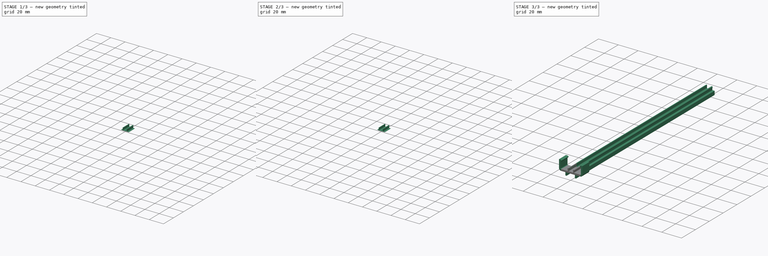
[diagram: build sequence overview — one tinted view per stage of 3, left to right]
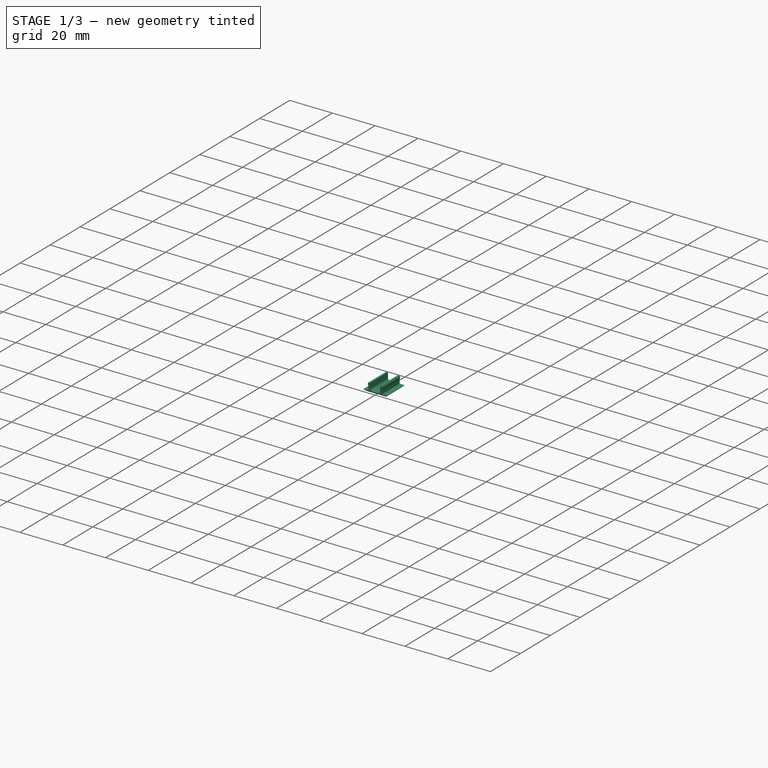
[diagram: stage 1 of 3 — iso view after this stage's code; geometry added in this stage tinted green]
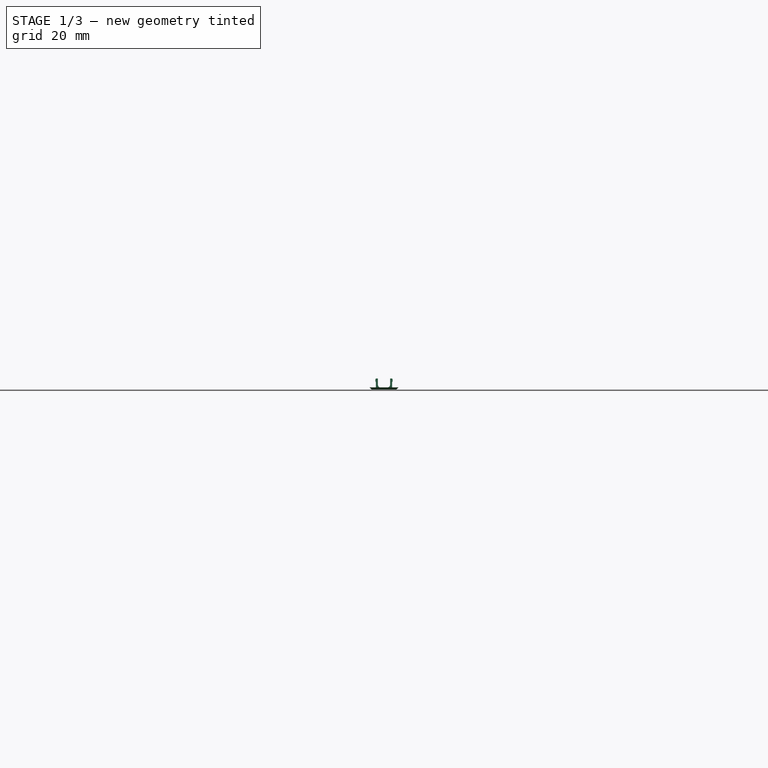
[diagram: stage 1 of 3 — front view after this stage's code; geometry added in this stage tinted green]
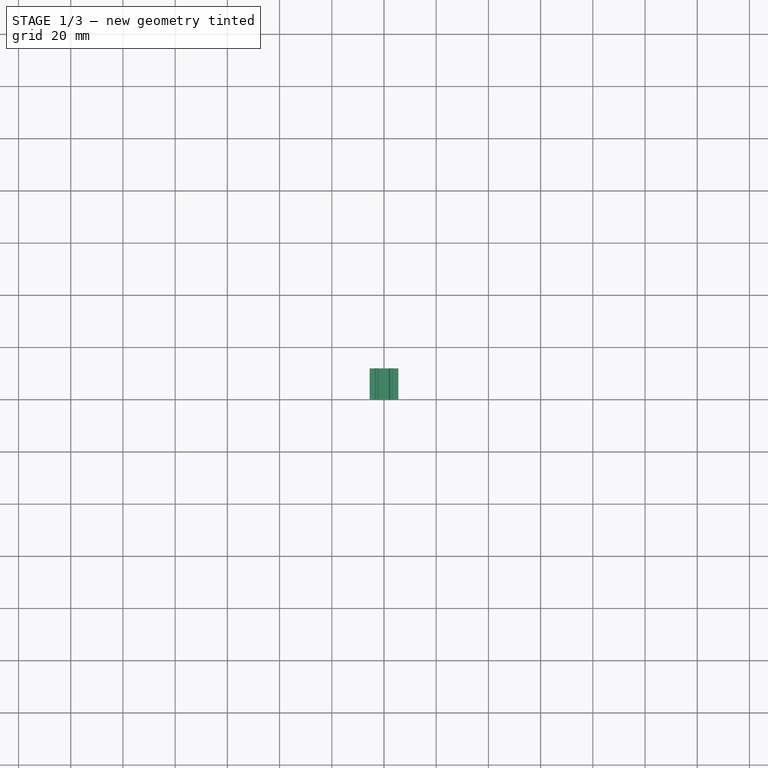
[diagram: stage 1 of 3 — top view after this stage's code; geometry added in this stage tinted green]
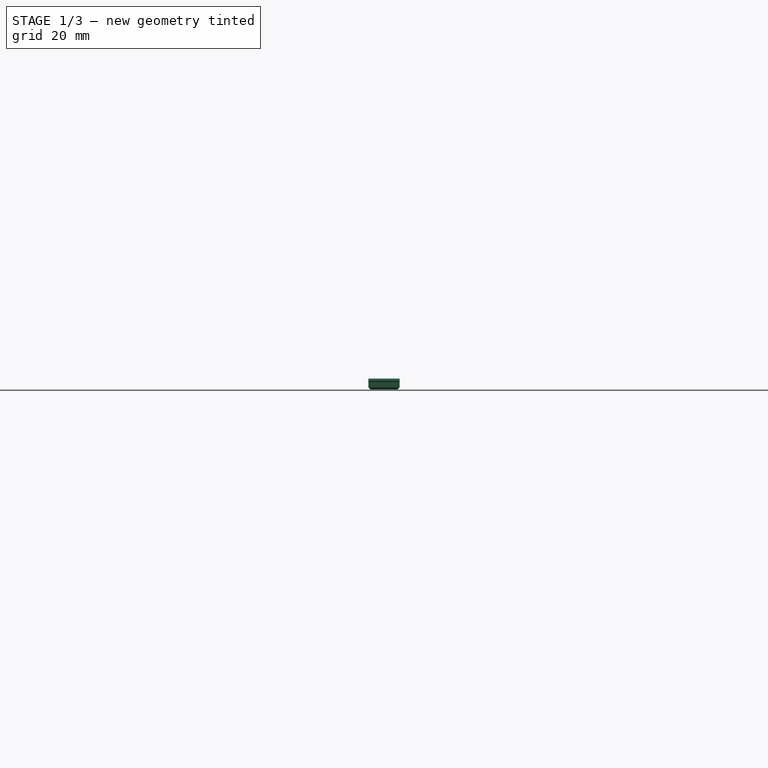
[diagram: stage 1 of 3 — right view after this stage's code; geometry added in this stage tinted green]
FCSTD DOCUMENT  (FreeCAD 0.19R24366 (Git))
Label: 2020_CableClip
License: All rights reserved
LicenseURL: http://en.wikipedia.org/wiki/All_rights_reserved
objects: Sketcher::SketchObject×3, PartDesign::Pad×3, PartDesign::Body×3, PartDesign::Chamfer×1, PartDesign::Fillet×1
note: 16 computed .brp shape members not serialized (recipe doc carries the construction recipe); baked Part::Feature solids carry a one-line shape summary decoded from their .brp

FEATURE [PartDesign::Body] Pad001Body  label="LedClipBody"
  Group = -> [Sketch001,Pad001]
  Origin = -> Origin002
  Tip = -> Pad001
FEATURE [PartDesign::Body] Pad002Body
  Group = -> [Sketch002,Pad002]
  Origin = -> Origin003
  Tip = -> Pad002
FEATURE [Sketcher::SketchObject] Sketch003  label="CableClip"
  FullyConstrained = true
  MapMode = 5
  Placement = pos=(0,0,0) rot=(0,0.707107,0.707107;3.14159rad)
  Support = -> [XZ_Plane001]
  sketch-geometry (20):
    g0: LineSegment StartX=-4.7 StartY=0 StartZ=0 EndX=4.7 EndY=0 EndZ=0
    g1: LineSegment StartX=4.7 StartY=0 StartZ=0 EndX=5.5 EndY=0.8 EndZ=0
    g2: LineSegment StartX=5.5 StartY=0.8 StartZ=0 EndX=3.125 EndY=0.8 EndZ=0
    g3: LineSegment StartX=3.125 StartY=0.8 StartZ=0 EndX=3.125 EndY=2.8 EndZ=0
    g4: LineSegment StartX=3.125 StartY=2.8 StartZ=0 EndX=3.325 EndY=3.2 EndZ=0
    g5: LineSegment StartX=3.325 StartY=3.2 StartZ=0 EndX=3.325 EndY=3.8 EndZ=0
    g6: LineSegment StartX=3.325 StartY=3.8 StartZ=0 EndX=3.125 EndY=4.2 EndZ=0
    g7: LineSegment StartX=3.125 StartY=4.2 StartZ=0 EndX=2.325 EndY=4.2 EndZ=0
    g8: LineSegment StartX=2.325 StartY=4.2 StartZ=0 EndX=2.325 EndY=1.8 EndZ=0
    g9: LineSegment StartX=1.325 StartY=0.8 StartZ=0 EndX=-1.325 EndY=0.8 EndZ=0
    g10: LineSegment StartX=-2.325 StartY=1.8 StartZ=0 EndX=-2.325 EndY=4.2 EndZ=0
    g11: LineSegment StartX=-2.325 StartY=4.2 StartZ=0 EndX=-3.125 EndY=4.2 EndZ=0
    g12: LineSegment StartX=-3.125 StartY=4.2 StartZ=0 EndX=-3.325 EndY=3.8 EndZ=0
    g13: LineSegment StartX=-3.325 StartY=3.8 StartZ=0 EndX=-3.325 EndY=3.2 EndZ=0
    g14: LineSegment StartX=-3.125 StartY=2.8 StartZ=0 EndX=-3.125 EndY=0.8 EndZ=0
    g15: LineSegment StartX=-3.125 StartY=0.8 StartZ=0 EndX=-5.5 EndY=0.8 EndZ=0
    g16: LineSegment StartX=-5.5 StartY=0.8 StartZ=0 EndX=-4.7 EndY=0 EndZ=0
    g17: ArcOfCircle CenterX=-1.325 CenterY=1.8 CenterZ=0 NormalX=0 NormalY=0 NormalZ=1 AngleXU=0 Radius=1 StartAngle=3.14159 EndAngle=4.71239
    g18: ArcOfCircle CenterX=1.325 CenterY=1.8 CenterZ=0 NormalX=0 NormalY=0 NormalZ=1 AngleXU=0 Radius=1 StartAngle=4.71239 EndAngle=6.28319
    g19: LineSegment StartX=-3.325 StartY=3.2 StartZ=0 EndX=-3.125 EndY=2.8 EndZ=0
  constraints (53):
    c: Coincident(g0,g1)
    c: Coincident(g1,g2)
    c: Horizontal(g2)
    c: Coincident(g2,g3)
    c: Vertical(g3)
    c: Coincident(g3,g4)
    c: Coincident(g4,g5)
    c: Vertical(g5)
    c: Coincident(g5,g6)
    c: Coincident(g6,g7)
    c: Horizontal(g7)
    c: Coincident(g7,g8)
    c: Vertical(g8)
    c: Horizontal(g9)
    c: Vertical(g10)
    c: Horizontal(g11)
    c: Coincident(g11,g12)
    c: Coincident(g12,g13)
    c: Vertical(g13)
    c: Vertical(g14)
    c: Coincident(g14,g15)
    c: Coincident(g15,g16)
    c: Coincident(g0,g16)
    c: DistanceY(g16,g16) = 0.8
    c: DistanceX(g11,g11) = 0.8
    c: DistanceX(g11,g6) = 6.25
    c: DistanceX(g12,g12) = 0.2
    c: DistanceY(g12,g11) = 0.4
    c: DistanceY(g14,g14) = 2
    c: DistanceY(g13,g13) = 0.6
    c: DistanceX(g0,g0) = 9.4
    c: PointOnObject(g0,g-1)
    c: Tangent(g9,g17) = 1.5708
    c: Tangent(g10,g17) = 1.5708
    c: Tangent(g8,g18) = 1.5708
    c: Tangent(g9,g18) = 1.5708
    c: Radius(g17) = 1
    c: DistanceX(g14,g10) = 0.8
    c: Coincident(g19,g13)
    c: Coincident(g19,g14)
    c: Symmetric(g7,g10,g-2)
    c: Symmetric(g0,g0,g-2)
    c: Symmetric(g14,g2,g-2)
    c: Symmetric(g13,g4,g-2)
    c: Equal(g13,g5)
    c: Equal(g7,g11)
    c: Coincident(g10,g11)
    c: Tangent(g9,g15)
    c: Equal(g17,g18)
    c: Equal(g14,g3)
    c: DistanceX(g15,g1) = 11
    c: Equal(g15,g2)
    c: DistanceY(g14,g13) = 0.4
FEATURE [PartDesign::Pad] Pad
  AllowMultiFace = false
  Direction = (1,1,1)
  Length = 12
  Length2 = 100
  Placement = pos=(0,0,0) rot=(1,0,0;1.5708rad)
  Profile = -> Sketch003
  Type = 0
FEATURE [PartDesign::Chamfer] Chamfer
  Angle = 45
  Base = -> Pad [Edge28,Edge27]
  BaseFeature = -> Pad
  ChamferType = 0
  FlipDirection = false
  Placement = pos=(0,0,0) rot=(1,0,0;1.5708rad)
  Size = 0.79
  Size2 = 1
  SupportTransform = false
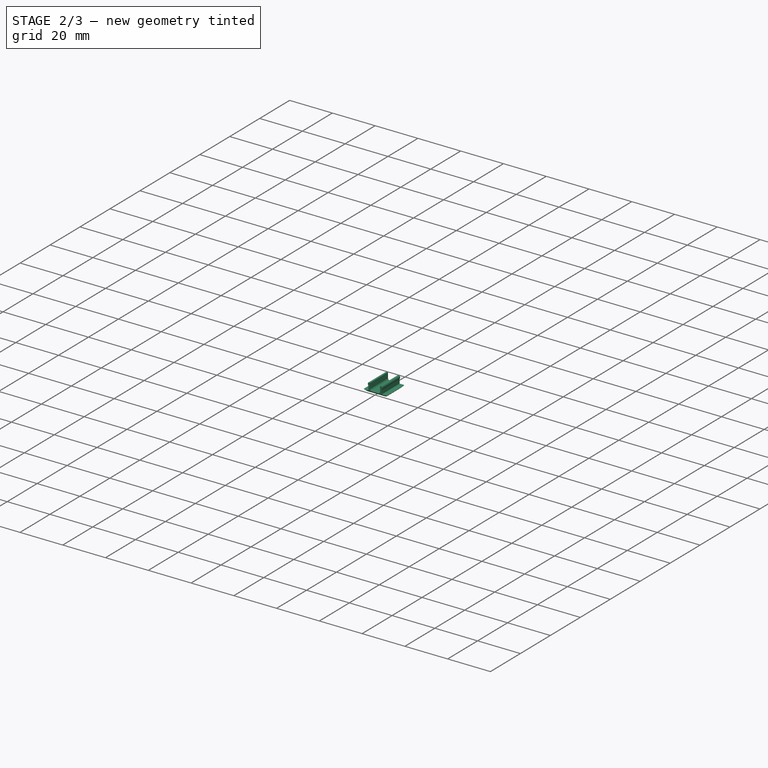
[diagram: stage 2 of 3 — iso view after this stage's code; geometry added in this stage tinted green]
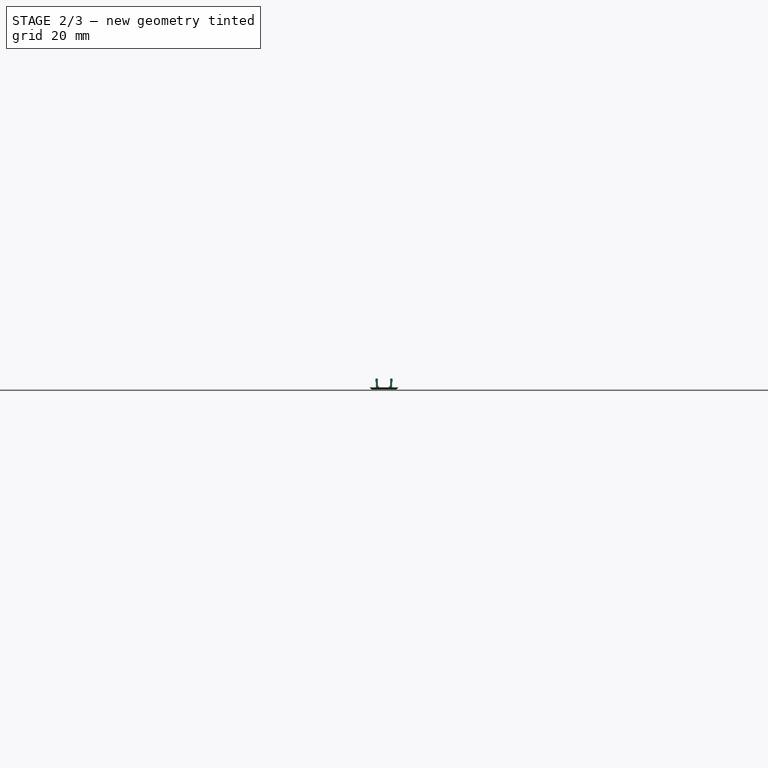
[diagram: stage 2 of 3 — front view after this stage's code; geometry added in this stage tinted green]
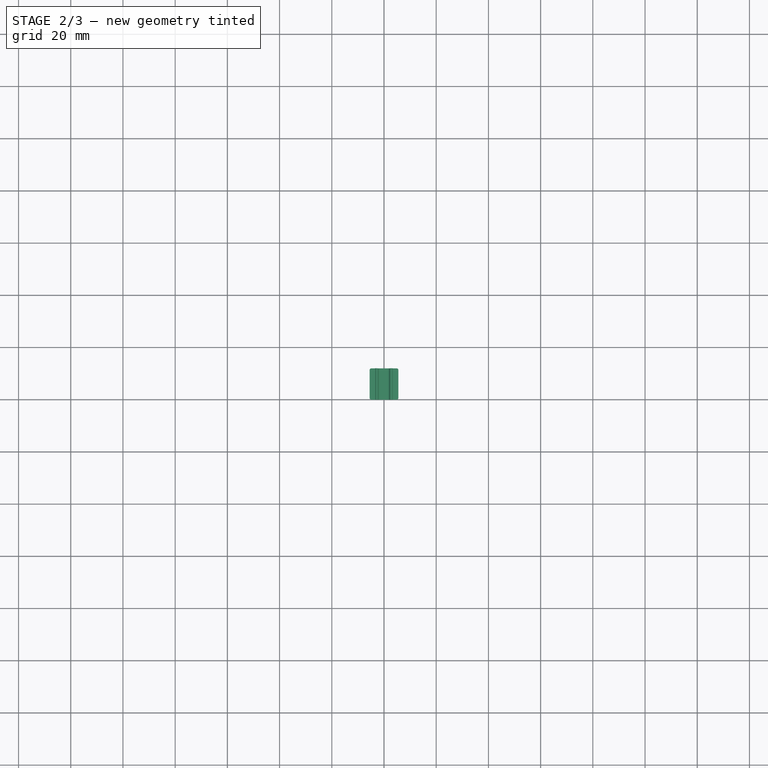
[diagram: stage 2 of 3 — top view after this stage's code; geometry added in this stage tinted green]
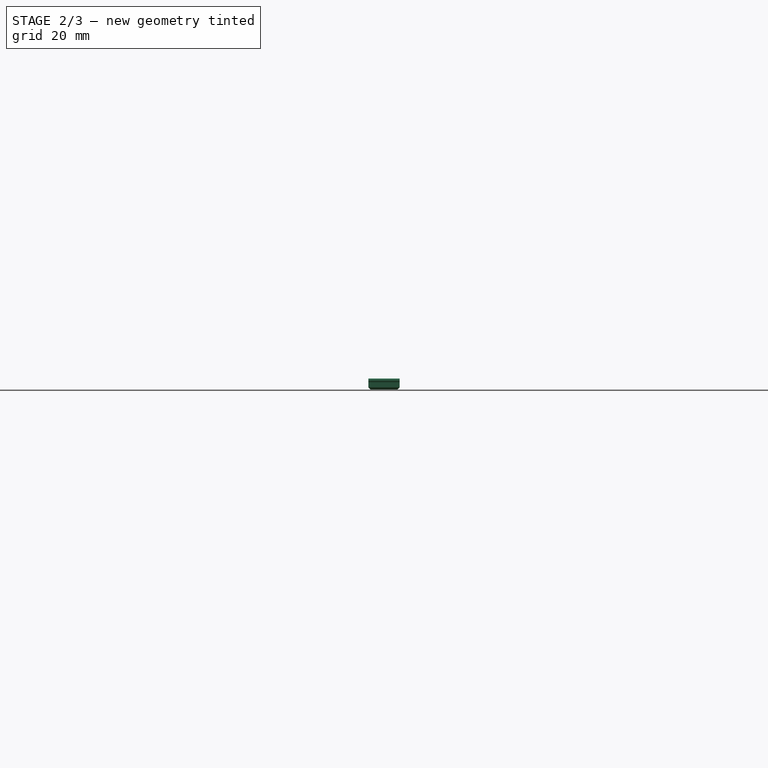
[diagram: stage 2 of 3 — right view after this stage's code; geometry added in this stage tinted green]
FEATURE [PartDesign::Fillet] Fillet
  Base = -> Chamfer [Edge3,Edge2,Edge13,Edge11]
  BaseFeature = -> Chamfer
  Placement = pos=(0,0,0) rot=(1,0,0;1.5708rad)
  Radius = 1
  SupportTransform = false
FEATURE [PartDesign::Body] PadBody  label="Plug"
  Group = -> [Sketch003,Pad,Chamfer,Fillet]
  Origin = -> Origin001
  Tip = -> Fillet
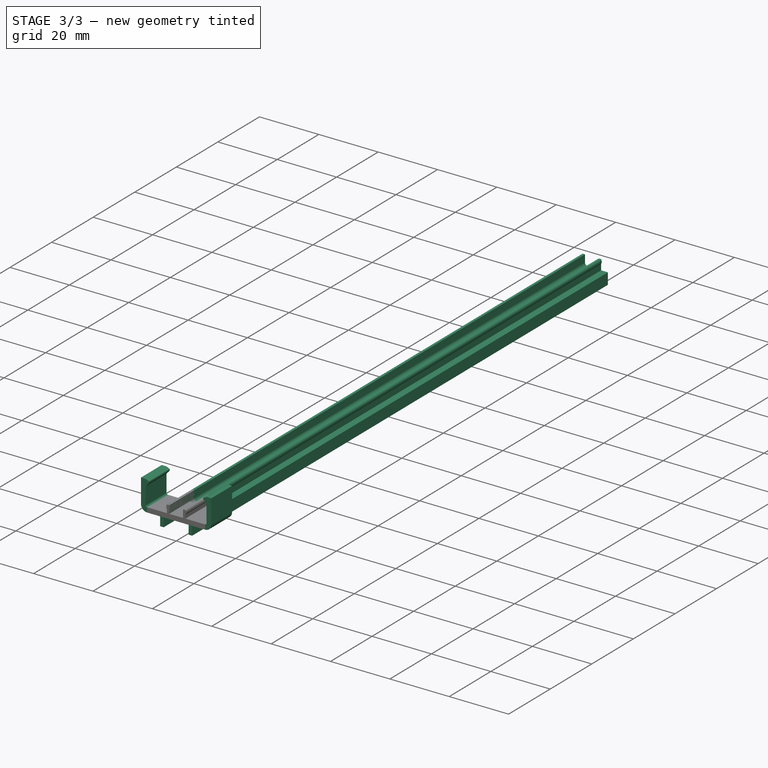
[diagram: stage 3 of 3 — iso view after this stage's code; geometry added in this stage tinted green]
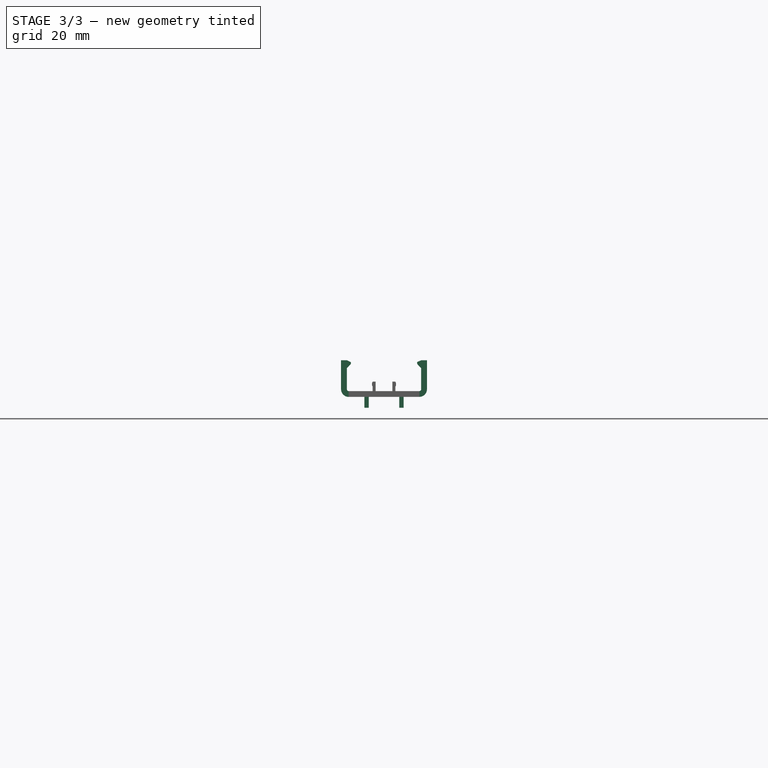
[diagram: stage 3 of 3 — front view after this stage's code; geometry added in this stage tinted green]
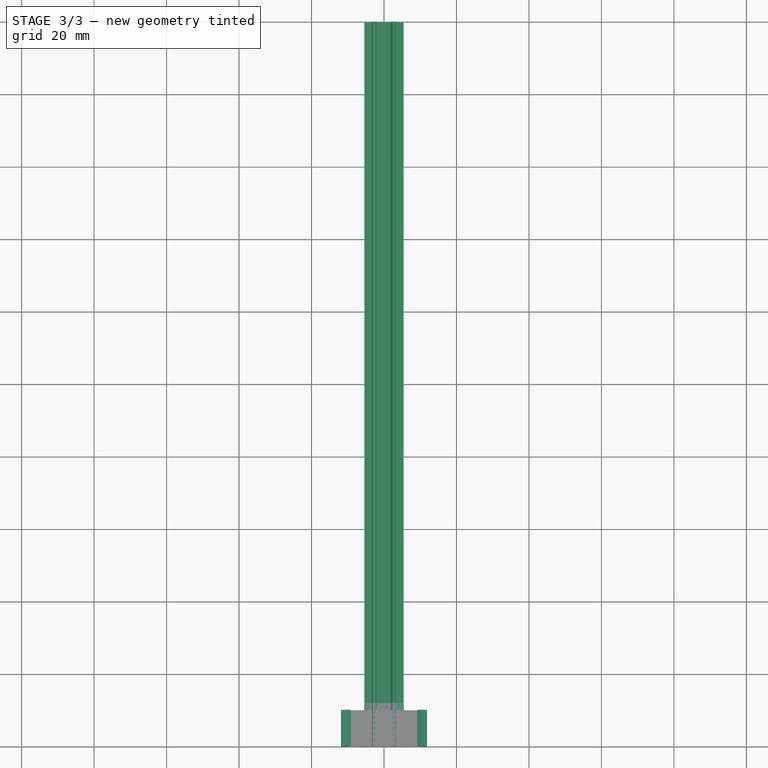
[diagram: stage 3 of 3 — top view after this stage's code; geometry added in this stage tinted green]
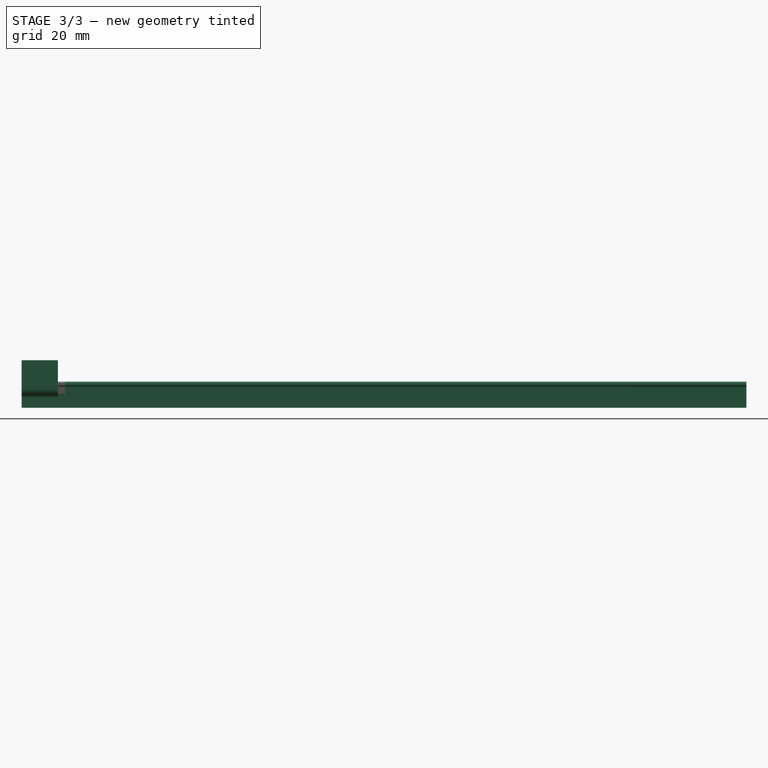
[diagram: stage 3 of 3 — right view after this stage's code; geometry added in this stage tinted green]
FEATURE [Sketcher::SketchObject] Sketch001  label="LEDClip"
  FullyConstrained = true
  MapMode = 5
  Placement = pos=(0,0,0) rot=(0,0.707107,0.707107;3.14159rad)
  Support = -> [XZ_Plane002]
  sketch-geometry (26):
    g0: LineSegment StartX=5.4 StartY=0.8 StartZ=0 EndX=3.125 EndY=0.8 EndZ=0
    g1: LineSegment StartX=3.125 StartY=0.8 StartZ=0 EndX=3.125 EndY=2.8 EndZ=0
    g2: LineSegment StartX=3.125 StartY=2.8 StartZ=0 EndX=3.325 EndY=3.2 EndZ=0
    g3: LineSegment StartX=3.325 StartY=3.2 StartZ=0 EndX=3.325 EndY=3.8 EndZ=0
    g4: LineSegment StartX=3.325 StartY=3.8 StartZ=0 EndX=3.125 EndY=4.2 EndZ=0
    g5: LineSegment StartX=3.125 StartY=4.2 StartZ=0 EndX=2.325 EndY=4.2 EndZ=0
    g6: LineSegment StartX=2.325 StartY=4.2 StartZ=0 EndX=2.325 EndY=1.8 EndZ=0
    g7: LineSegment StartX=1.325 StartY=0.8 StartZ=0 EndX=-1.325 EndY=0.8 EndZ=0
    g8: LineSegment StartX=-2.325 StartY=1.8 StartZ=0 EndX=-2.325 EndY=4.2 EndZ=0
    g9: LineSegment StartX=-2.325 StartY=4.2 StartZ=0 EndX=-3.125 EndY=4.2 EndZ=0
    g10: LineSegment StartX=-3.125 StartY=4.2 StartZ=0 EndX=-3.325 EndY=3.8 EndZ=0
    g11: LineSegment StartX=-3.325 StartY=3.8 StartZ=0 EndX=-3.325 EndY=3.2 EndZ=0
    g12: LineSegment StartX=-3.125 StartY=2.8 StartZ=0 EndX=-3.125 EndY=0.8 EndZ=0
    g13: LineSegment StartX=-3.125 StartY=0.8 StartZ=0 EndX=-5.4 EndY=0.8 EndZ=0
    g14: ArcOfCircle CenterX=-1.325 CenterY=1.8 CenterZ=0 NormalX=0 NormalY=0 NormalZ=1 AngleXU=0 Radius=1 StartAngle=3.14159 EndAngle=4.71239
    g15: ArcOfCircle CenterX=1.325 CenterY=1.8 CenterZ=0 NormalX=0 NormalY=0 NormalZ=1 AngleXU=0 Radius=1 StartAngle=4.71239 EndAngle=6.28319
    g16: LineSegment StartX=-3.325 StartY=3.2 StartZ=0 EndX=-3.125 EndY=2.8 EndZ=0
    g17: LineSegment StartX=-5.4 StartY=0.8 StartZ=0 EndX=-5.4 EndY=-3 EndZ=0
    g18: LineSegment StartX=-5.4 StartY=-3 StartZ=0 EndX=-4.2 EndY=-3 EndZ=0
    g19: LineSegment StartX=-4.2 StartY=-3 StartZ=0 EndX=-4.2 EndY=0 EndZ=0
    g20: LineSegment StartX=-4.2 StartY=0 StartZ=0 EndX=4.2 EndY=0 EndZ=0
    g21: LineSegment StartX=4.2 StartY=0 StartZ=0 EndX=4.2 EndY=-3 EndZ=0
    g22: LineSegment StartX=4.2 StartY=-3 StartZ=0 EndX=5.4 EndY=-3 EndZ=0
    g23: LineSegment StartX=5.4 StartY=-3 StartZ=0 EndX=5.4 EndY=0.8 EndZ=0
    g24: LineSegment StartX=-3.125 StartY=0.8 StartZ=0 EndX=-1.325 EndY=0.8 EndZ=0
    g25: LineSegment StartX=1.325 StartY=0.8 StartZ=0 EndX=3.125 EndY=0.8 EndZ=0
  constraints (70):
    c: Coincident(g0,g1)
    c: Vertical(g1)
    c: Coincident(g1,g2)
    c: Coincident(g2,g3)
    c: Vertical(g3)
    c: Coincident(g3,g4)
    c: Coincident(g4,g5)
    c: Horizontal(g5)
    c: Coincident(g5,g6)
    c: Vertical(g6)
    c: Vertical(g8)
    c: Horizontal(g9)
    c: Coincident(g9,g10)
    c: Coincident(g10,g11)
    c: Vertical(g11)
    c: Vertical(g12)
    c: DistanceX(g9,g9) = 0.8
    c: DistanceX(g9,g4) = 6.25
    c: DistanceX(g10,g10) = 0.2
    c: DistanceY(g10,g9) = 0.4
    c: DistanceY(g12,g12) = 2
    c: DistanceY(g11,g11) = 0.6
    c: Tangent(g7,g14) = 1.5708
    c: Tangent(g8,g14) = 1.5708
    c: Tangent(g6,g15) = 1.5708
    c: Tangent(g7,g15) = 1.5708
    c: Radius(g14) = 1
    c: DistanceX(g12,g8) = 0.8
    c: Coincident(g16,g11)
    c: Coincident(g16,g12)
    c: DistanceY(g12,g9) = 1.4
    c: Symmetric(g5,g8,g-2)
    c: Symmetric(g11,g2,g-2)
    c: Equal(g11,g3)
    c: Equal(g5,g9)
    c: Coincident(g8,g9)
    c: Equal(g14,g15)
    c: Equal(g12,g1)
    c: Vertical(g17)
    c: Coincident(g17,g18)
    c: Horizontal(g18)
    c: Coincident(g18,g19)
    c: PointOnObject(g19,g-1)
    c: Vertical(g19)
    c: Coincident(g19,g20)
    c: Coincident(g20,g21)
    c: Vertical(g21)
    c: Coincident(g21,g22)
    c: Horizontal(g22)
    c: Coincident(g22,g23)
    c: Vertical(g23)
    c: Equal(g17,g23)
    c: Equal(g18,g22)
    c: DistanceX(g18,g18) = 1.2
    c: DistanceY(g17,g17) = 3.8
    c: Coincident(g17,g13)
    c: Horizontal(g13)
    c: Coincident(g13,g12)
    c: Coincident(g23,g0)
    c: Symmetric(g19,g20,g-2)
    c: Horizontal(g0)
    c: Coincident(g24,g12)
    c: Coincident(g24,g7)
    c: Horizontal(g24)
    c: Coincident(g25,g7)
    c: Coincident(g25,g0)
    c: Horizontal(g25)
    c: DistanceY(g19,g13) = 0.8
    c: Symmetric(g0,g12,g-2)
    c: DistanceX(g19,g20) = 8.4
FEATURE [PartDesign::Pad] Pad001  label="LedClip_"
  AllowMultiFace = false
  Direction = (1,1,1)
  Length = 200
  Length2 = 100
  Placement = pos=(0,0,0) rot=(1,0,0;1.5708rad)
  Profile = -> Sketch001
  Type = 0
FEATURE [Sketcher::SketchObject] Sketch002
  FullyConstrained = true
  MapMode = 5
  Placement = pos=(0,0,0) rot=(0,0.707107,0.707107;3.14159rad)
  Support = -> [XZ_Plane003]
  sketch-geometry (20):
    g0: LineSegment StartX=-10.25 StartY=10.1 StartZ=0 EndX=-9.15 EndY=9.6 EndZ=0
    g1: LineSegment StartX=-9.15 StartY=9.6 StartZ=0 EndX=-9.15 EndY=9.1 EndZ=0
    g2: LineSegment StartX=-9.15 StartY=9.1 StartZ=0 EndX=-10.25 EndY=7.9 EndZ=0
    g3: LineSegment StartX=-10.25 StartY=7.9 StartZ=0 EndX=-10.25 EndY=2.1 EndZ=0
    g4: LineSegment StartX=-9.75 StartY=1.6 StartZ=0 EndX=9.75 EndY=1.6 EndZ=0
    g5: LineSegment StartX=10.25 StartY=2.1 StartZ=0 EndX=10.25 EndY=7.9 EndZ=0
    g6: LineSegment StartX=10.25 StartY=7.9 StartZ=0 EndX=9.15 EndY=9.1 EndZ=0
    g7: LineSegment StartX=9.15 StartY=9.1 StartZ=0 EndX=9.15 EndY=9.6 EndZ=0
    g8: LineSegment StartX=9.15 StartY=9.6 StartZ=0 EndX=10.25 EndY=10.1 EndZ=0
    g9: LineSegment StartX=10.25 StartY=10.1 StartZ=0 EndX=11.85 EndY=10.1 EndZ=0
    g10: LineSegment StartX=11.85 StartY=10.1 StartZ=0 EndX=11.85 EndY=2.1 EndZ=0
    g11: LineSegment StartX=-11.85 StartY=10.1 StartZ=0 EndX=-10.25 EndY=10.1 EndZ=0
    g12: LineSegment StartX=-10.25 StartY=7.9 StartZ=0 EndX=-10.25 EndY=10.1 EndZ=0
    g13: LineSegment StartX=10.25 StartY=7.9 StartZ=0 EndX=10.25 EndY=10.1 EndZ=0
    g14: ArcOfCircle CenterX=-9.75 CenterY=2.1 CenterZ=0 NormalX=0 NormalY=0 NormalZ=1 AngleXU=0 Radius=0.5 StartAngle=3.14159 EndAngle=4.71239
    g15: ArcOfCircle CenterX=9.75 CenterY=2.1 CenterZ=0 NormalX=0 NormalY=0 NormalZ=1 AngleXU=0 Radius=0.5 StartAngle=4.71239 EndAngle=6.28319
    g16: LineSegment StartX=-11.85 StartY=10.1 StartZ=0 EndX=-11.85 EndY=2.1 EndZ=0
    g17: LineSegment StartX=-9.75 StartY=0 StartZ=0 EndX=9.75 EndY=0 EndZ=0
    g18: ArcOfCircle CenterX=-9.75 CenterY=2.1 CenterZ=0 NormalX=0 NormalY=0 NormalZ=1 AngleXU=0 Radius=2.1 StartAngle=3.14159 EndAngle=4.71239
    g19: ArcOfCircle CenterX=9.75 CenterY=2.1 CenterZ=0 NormalX=0 NormalY=0 NormalZ=1 AngleXU=0 Radius=2.1 StartAngle=4.71239 EndAngle=6.28319
  constraints (48):
    c: Coincident(g0,g1)
    c: Vertical(g1)
    c: Coincident(g1,g2)
    c: Coincident(g2,g3)
    c: Vertical(g3)
    c: Coincident(g5,g6)
    c: Coincident(g6,g7)
    c: Vertical(g7)
    c: Coincident(g7,g8)
    c: Coincident(g8,g9)
    c: Horizontal(g9)
    c: Coincident(g9,g10)
    c: Vertical(g10)
    c: Coincident(g11,g0)
    c: Horizontal(g11)
    c: Coincident(g12,g2)
    c: Coincident(g12,g0)
    c: Vertical(g12)
    c: Coincident(g13,g5)
    c: Coincident(g13,g8)
    c: Vertical(g13)
    c: Symmetric(g1,g6,g-2)
    c: DistanceY(g1,g1) = 0.5
    c: DistanceY(g2,g2) = 1.2
    c: Equal(g1,g7)
    c: DistanceX(g0,g0) = 1.1
    c: Tangent(g3,g14) = -1.5708
    c: Tangent(g4,g14) = -1.5708
    c: Tangent(g4,g15) = -1.5708
    c: Tangent(g5,g15) = -1.5708
    c: Coincident(g11,g16)
    c: Symmetric(g4,g4,g-2)
    c: Symmetric(g3,g5,g-2)
    c: Tangent(g16,g18) = -1.5708
    c: Tangent(g17,g18) = -1.5708
    c: Tangent(g10,g19) = 1.5708
    c: Tangent(g17,g19) = -1.5708
    c: Symmetric(g17,g17,g-2)
    c: Symmetric(g16,g10,g-2)
    c: Coincident(g14,g18)
    c: DistanceY(g4,g2) = 6.3
    c: DistanceX(g16,g3) = 1.6
    c: DistanceX(g3,g5) = 20.5
    c: PointOnObject(g17,g-1)
    c: Equal(g5,g3)
    c: DistanceY(g0,g0) = 0.5
    c: Equal(g0,g8)
    c: Radius(g14) = 0.5
FEATURE [PartDesign::Pad] Pad002
  AllowMultiFace = false
  Direction = (1,1,1)
  Length = 10
  Length2 = 100
  Placement = pos=(0,0,0) rot=(1,0,0;1.5708rad)
  Profile = -> Sketch002
  Type = 0
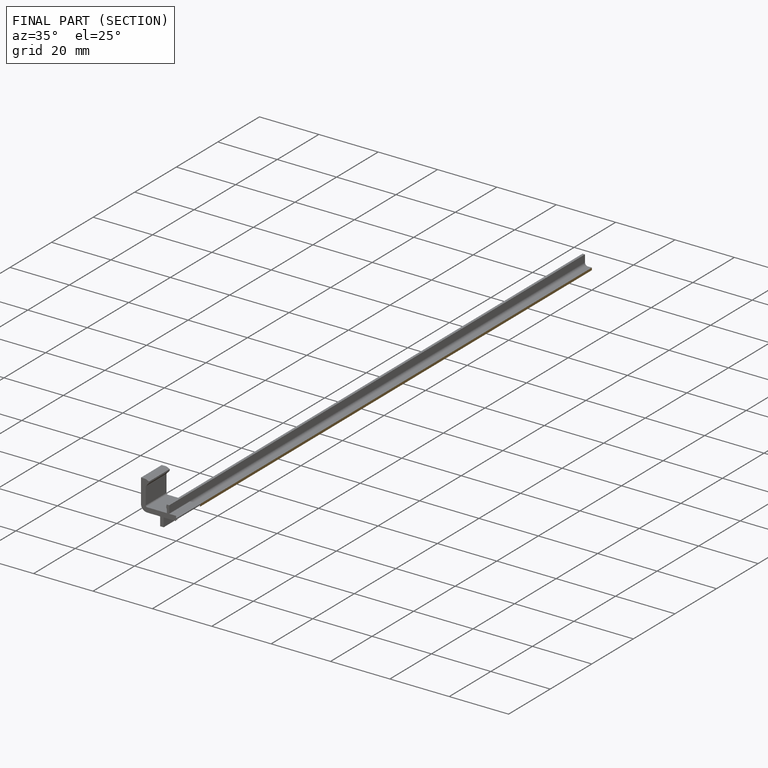
[diagram: finished part — half-section view (interior)]
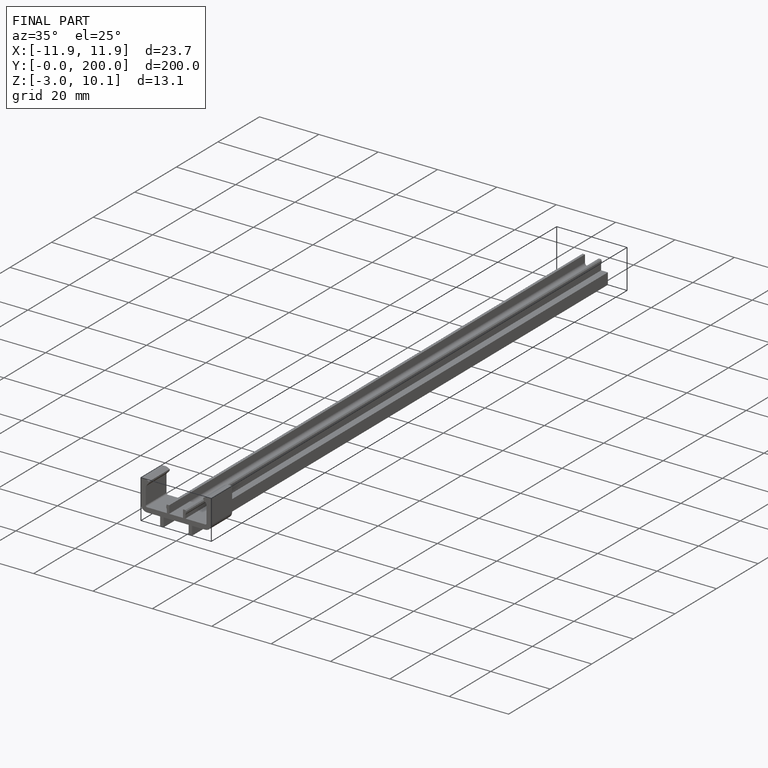
[diagram: finished part — iso view with bounding-box wireframe]
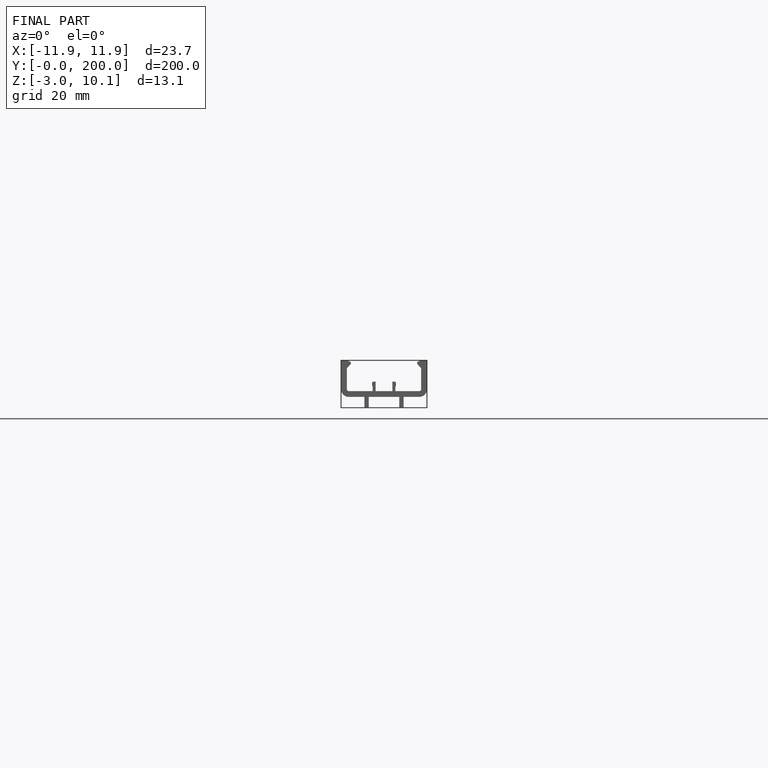
[diagram: finished part — front view with bounding-box wireframe]
